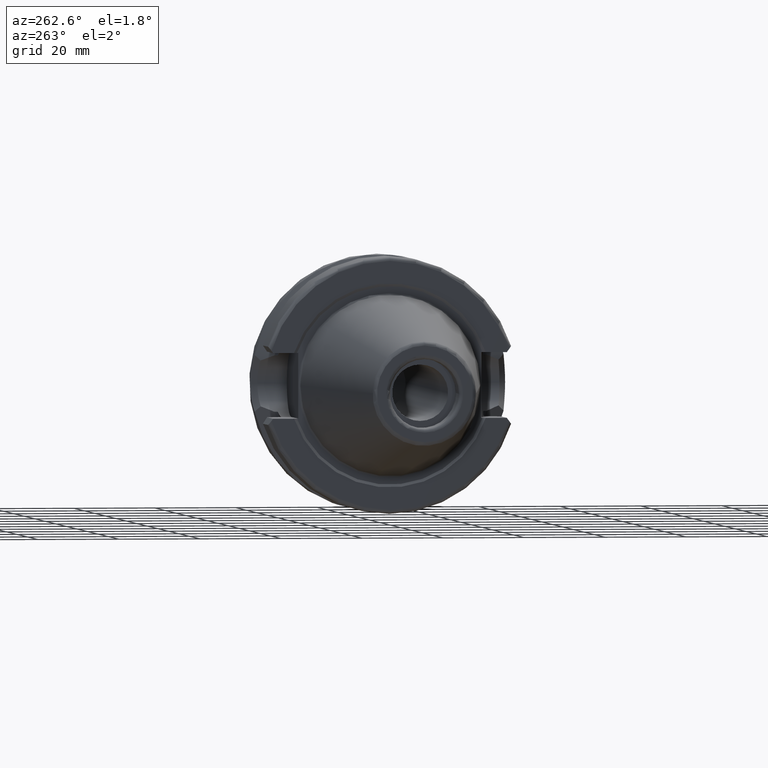
[diagram: clean part render]
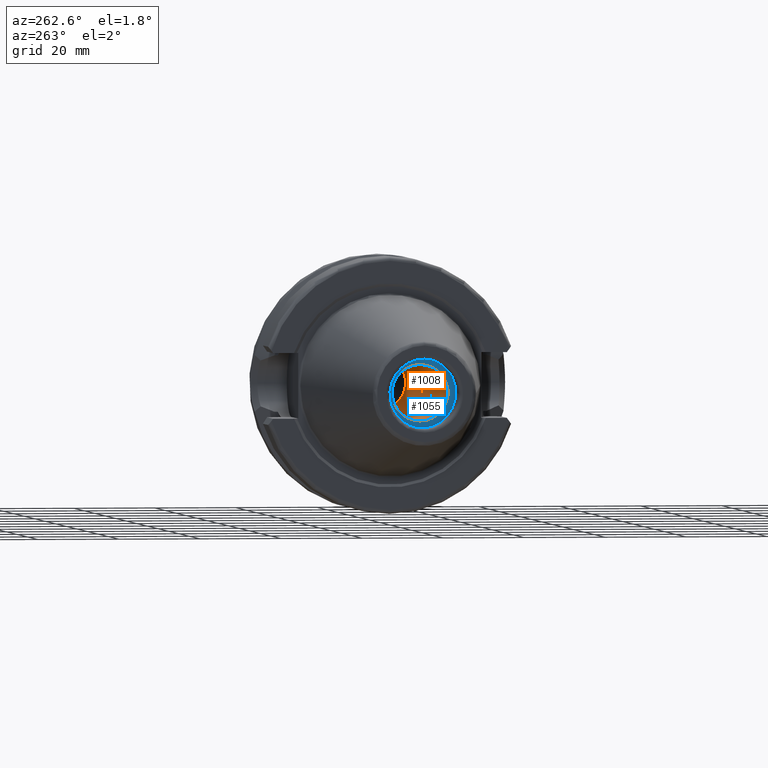
[diagram: same view with the hole feature highlighted: cylindrical wall and planar end face, labeled with their STEP entity ids]
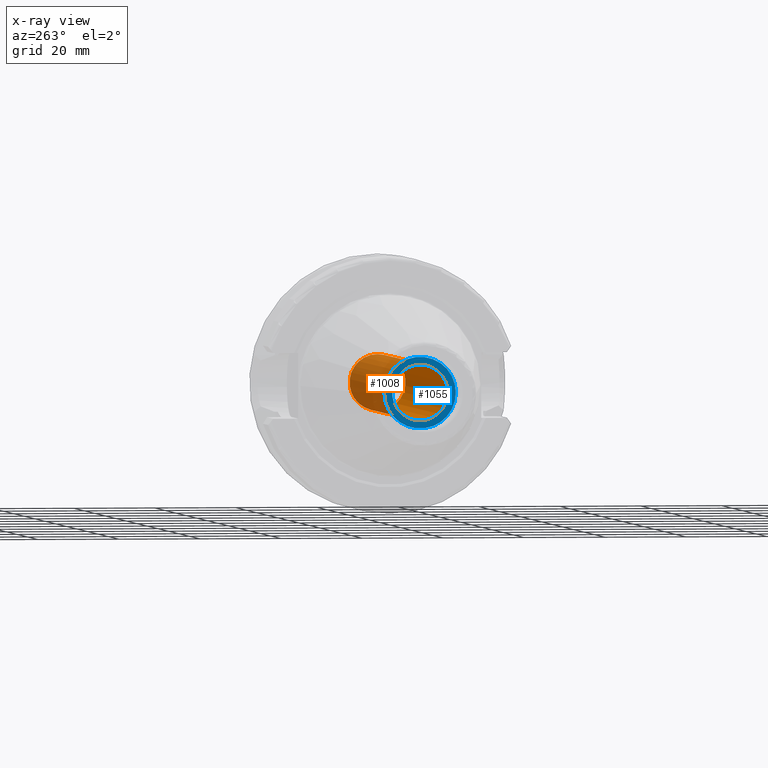
[diagram: x-ray of the same camera — body ghosted, the hole faces saturated]
A machine part, auxiliary view. The highlighted faces form one hole feature of diameter 13.835 mm: the cylindrical wall (entity #1008, orange) and its adjacent planar end face (entity #1055, blue) — they share a circular edge in the B-rep.
The next image is the same camera in x-ray (body ghosted, the hole faces saturated) — the bore reads through the body.
Wall:
#66=LINE('',#1571,#124);
#124=VECTOR('',#1276,6.9175);
#180=CYLINDRICAL_SURFACE('',#1111,6.9175);
#232=FACE_OUTER_BOUND('',#295,.T.);
#295=EDGE_LOOP('',(#719,#720,#721,#722));
#368=CIRCLE('',#1110,6.9175);
#369=CIRCLE('',#1112,6.9175);
#431=VERTEX_POINT('',#1565);
#432=VERTEX_POINT('',#1569);
#540=EDGE_CURVE('',#431,#431,#368,.T.);
#542=EDGE_CURVE('',#432,#432,#369,.T.);
#543=EDGE_CURVE('',#432,#431,#66,.T.);
#719=ORIENTED_EDGE('',*,*,#542,.F.);
#720=ORIENTED_EDGE('',*,*,#543,.T.);
#721=ORIENTED_EDGE('',*,*,#540,.F.);
#722=ORIENTED_EDGE('',*,*,#543,.F.);
#1008=ADVANCED_FACE('',(#232),#180,.F.);
#1110=AXIS2_PLACEMENT_3D('',#1566,#1269,#1270);
#1111=AXIS2_PLACEMENT_3D('',#1568,#1272,#1273);
#1112=AXIS2_PLACEMENT_3D('',#1570,#1274,#1275);
#1269=DIRECTION('center_axis',(-1.,0.,0.));
#1270=DIRECTION('ref_axis',(0.,0.,1.));
#1272=DIRECTION('center_axis',(-1.,0.,0.));
#1273=DIRECTION('ref_axis',(0.,0.,1.));
#1274=DIRECTION('center_axis',(1.,0.,0.));
#1275=DIRECTION('ref_axis',(0.,0.,1.));
#1276=DIRECTION('',(1.,0.,0.));
#1565=CARTESIAN_POINT('',(24.6,-8.47149423310182E-16,-6.9175));
#1566=CARTESIAN_POINT('Origin',(24.6,0.,0.));
#1568=CARTESIAN_POINT('Origin',(-20.4,0.,0.));
#1569=CARTESIAN_POINT('',(-56.4,8.47149423310182E-16,-6.9175));
#1570=CARTESIAN_POINT('Origin',(-56.4,0.,0.));
#1571=CARTESIAN_POINT('',(-20.4,-8.47149423310182E-16,-6.9175));
End face:
#197=FACE_BOUND('',#346,.T.);
#221=PLANE('',#1200);
#279=FACE_OUTER_BOUND('',#345,.T.);
#345=EDGE_LOOP('',(#974));
#346=EDGE_LOOP('',(#975));
#369=CIRCLE('',#1112,6.9175);
#413=CIRCLE('',#1201,8.8);
#432=VERTEX_POINT('',#1569);
#515=VERTEX_POINT('',#2079);
#542=EDGE_CURVE('',#432,#432,#369,.T.);
#669=EDGE_CURVE('',#515,#515,#413,.T.);
#974=ORIENTED_EDGE('',*,*,#669,.F.);
#975=ORIENTED_EDGE('',*,*,#542,.T.);
#1055=ADVANCED_FACE('',(#279,#197),#221,.T.);
#1112=AXIS2_PLACEMENT_3D('',#1570,#1274,#1275);
#1200=AXIS2_PLACEMENT_3D('',#2078,#1500,#1501);
#1201=AXIS2_PLACEMENT_3D('',#2080,#1502,#1503);
#1274=DIRECTION('center_axis',(1.,0.,0.));
#1275=DIRECTION('ref_axis',(0.,0.,1.));
#1500=DIRECTION('center_axis',(-1.,0.,0.));
#1501=DIRECTION('ref_axis',(0.,0.,1.));
#1502=DIRECTION('center_axis',(1.,0.,0.));
#1503=DIRECTION('ref_axis',(0.,0.,-1.));
#1569=CARTESIAN_POINT('',(-56.4,8.47149423310182E-16,-6.9175));
#1570=CARTESIAN_POINT('Origin',(-56.4,0.,0.));
#2078=CARTESIAN_POINT('Origin',(-56.4,8.8,0.));
#2079=CARTESIAN_POINT('',(-56.4,-8.8,-1.07768918324967E-15));
#2080=CARTESIAN_POINT('Origin',(-56.4,0.,0.));